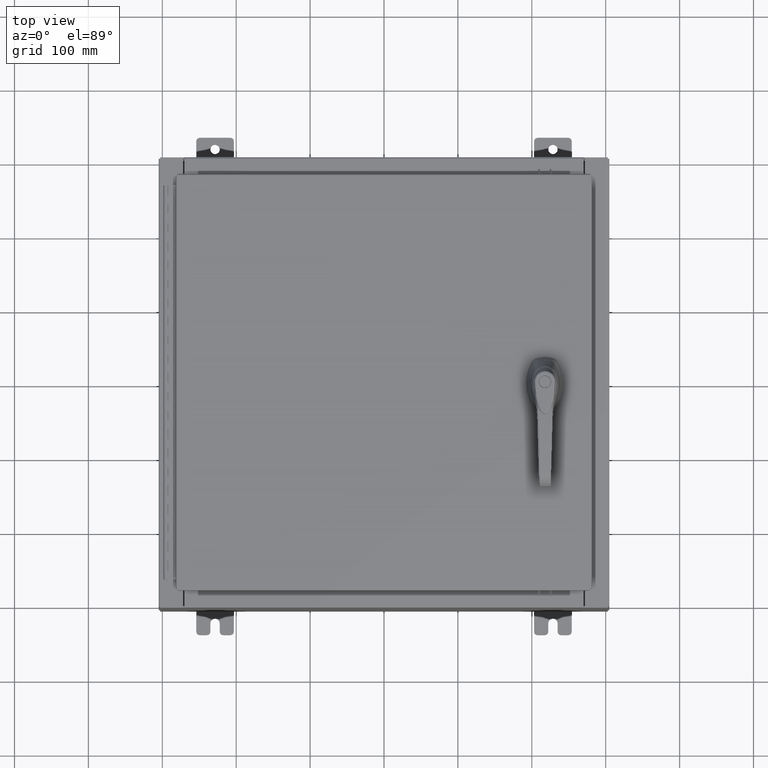
[diagram: clean part render]
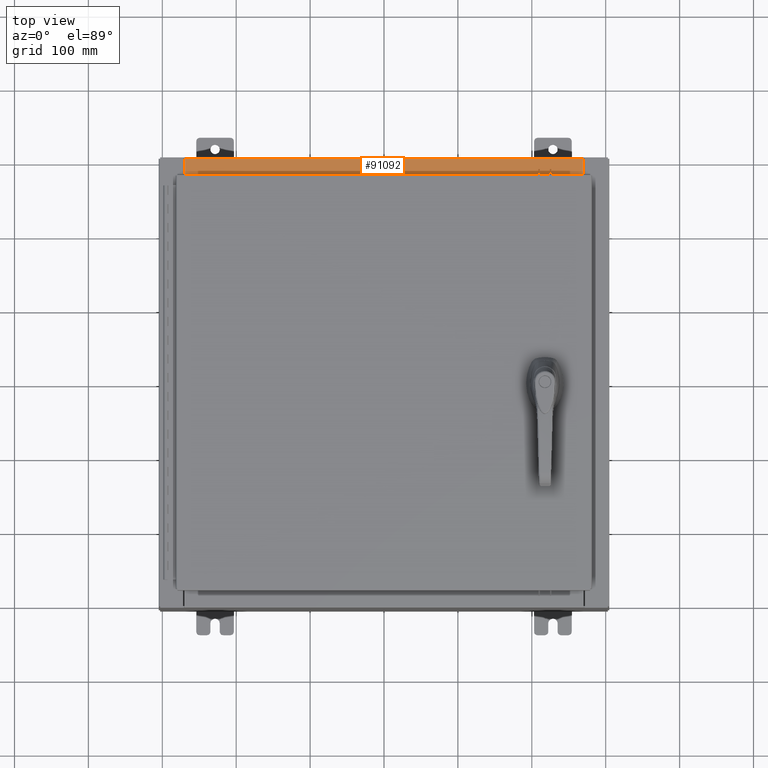
[diagram: same view with one face highlighted and labeled with its STEP entity id]
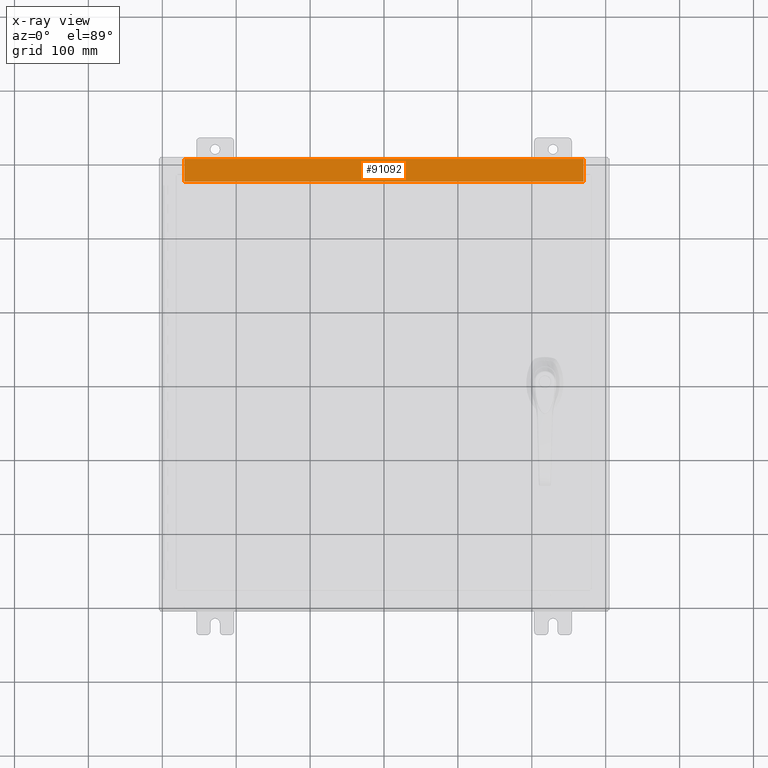
[diagram: x-ray of the same camera — body ghosted, the highlighted face saturated]
A machine part, top view. The second image highlights one B-rep face of the part: STEP entity #91092.
The next image is the same camera in x-ray: the body ghosted, the highlighted face saturated — about 0% of this face is hidden behind the body in this view.
In plain terms, the highlighted planar face has unit normal (0, 0, 1).
Its self-contained STEP definition (entity closure, byte-faithful):
#2596 = CARTESIAN_POINT ( 'NONE',  ( -3.422455537835030400E-018, 1.610972251716582100E-014, 6.000000000000001800 ) ) ;
#5192 = ORIENTED_EDGE ( 'NONE', *, *, #45796, .T. ) ;
#8625 = AXIS2_PLACEMENT_3D ( 'NONE', #2596, #46199, #106747 ) ;
#10266 = VERTEX_POINT ( 'NONE', #75970 ) ;
#14084 = CARTESIAN_POINT ( 'NONE',  ( 10.63720000000000400, -1.287299999999998800, 6.000000000000003600 ) ) ;
#18252 = VERTEX_POINT ( 'NONE', #70415 ) ;
#22119 = VECTOR ( 'NONE', #63953, 39.37007874015748100 ) ;
#36629 = EDGE_LOOP ( 'NONE', ( #96613, #73139, #45922, #5192 ) ) ;
#42584 = DIRECTION ( 'NONE',  ( -0.0000000000000000000, -1.000000000000000000, 3.566381192773190000E-015 ) ) ;
#43766 = VECTOR ( 'NONE', #42584, 39.37007874015748100 ) ;
#45464 = EDGE_CURVE ( 'NONE', #18252, #92624, #89829, .T. ) ;
#45796 = EDGE_CURVE ( 'NONE', #18252, #94862, #70812, .T. ) ;
#45815 = PLANE ( 'NONE',  #8625 ) ;
#45922 = ORIENTED_EDGE ( 'NONE', *, *, #45464, .F. ) ;
#46199 = DIRECTION ( 'NONE',  ( 0.0000000000000000000, 2.674785894579892700E-015, 1.000000000000000000 ) ) ;
#47802 = VECTOR ( 'NONE', #52272, 39.37007874015748100 ) ;
#49402 = EDGE_CURVE ( 'NONE', #92624, #10266, #111023, .T. ) ;
#50187 = FACE_OUTER_BOUND ( 'NONE', #36629, .T. ) ;
#52272 = DIRECTION ( 'NONE',  ( -1.000000000000000000, 0.0000000000000000000, 0.0000000000000000000 ) ) ;
#60320 = CARTESIAN_POINT ( 'NONE',  ( -10.63720000000000200, -0.08770000000000026400, 6.000000000000001800 ) ) ;
#62488 = EDGE_CURVE ( 'NONE', #10266, #94862, #111460, .T. ) ;
#63953 = DIRECTION ( 'NONE',  ( -0.0000000000000000000, 1.000000000000000000, -2.674785894579892700E-015 ) ) ;
#67737 = VECTOR ( 'NONE', #83351, 39.37007874015748100 ) ;
#70415 = CARTESIAN_POINT ( 'NONE',  ( 10.63720000000000400, -0.08770000000000002800, 6.000000000000001800 ) ) ;
#70812 = LINE ( 'NONE', #95008, #47802 ) ;
#72670 = CARTESIAN_POINT ( 'NONE',  ( -10.63720000000000200, -0.07469999999999973900, 6.000000000000001800 ) ) ;
#73139 = ORIENTED_EDGE ( 'NONE', *, *, #49402, .F. ) ;
#75970 = CARTESIAN_POINT ( 'NONE',  ( -10.63720000000000200, -1.287299999999998100, 6.000000000000004400 ) ) ;
#77063 = CARTESIAN_POINT ( 'NONE',  ( 10.63720000000000200, -1.300299999999999800, 6.000000000000006200 ) ) ;
#83351 = DIRECTION ( 'NONE',  ( -1.000000000000000000, 0.0000000000000000000, 0.0000000000000000000 ) ) ;
#89829 = LINE ( 'NONE', #77063, #43766 ) ;
#91092 = ADVANCED_FACE ( 'NONE', ( #50187 ), #45815, .T. ) ;
#92624 = VERTEX_POINT ( 'NONE', #104870 ) ;
#94862 = VERTEX_POINT ( 'NONE', #60320 ) ;
#95008 = CARTESIAN_POINT ( 'NONE',  ( -3.422455537835030400E-018, -0.08770000000000026400, 6.000000000000001800 ) ) ;
#96613 = ORIENTED_EDGE ( 'NONE', *, *, #62488, .F. ) ;
#104870 = CARTESIAN_POINT ( 'NONE',  ( 10.63720000000000200, -1.287299999999998800, 6.000000000000006200 ) ) ;
#106747 = DIRECTION ( 'NONE',  ( 0.0000000000000000000, -1.000000000000000000, 2.674785894579892700E-015 ) ) ;
#111023 = LINE ( 'NONE', #14084, #67737 ) ;
#111460 = LINE ( 'NONE', #72670, #22119 ) ;